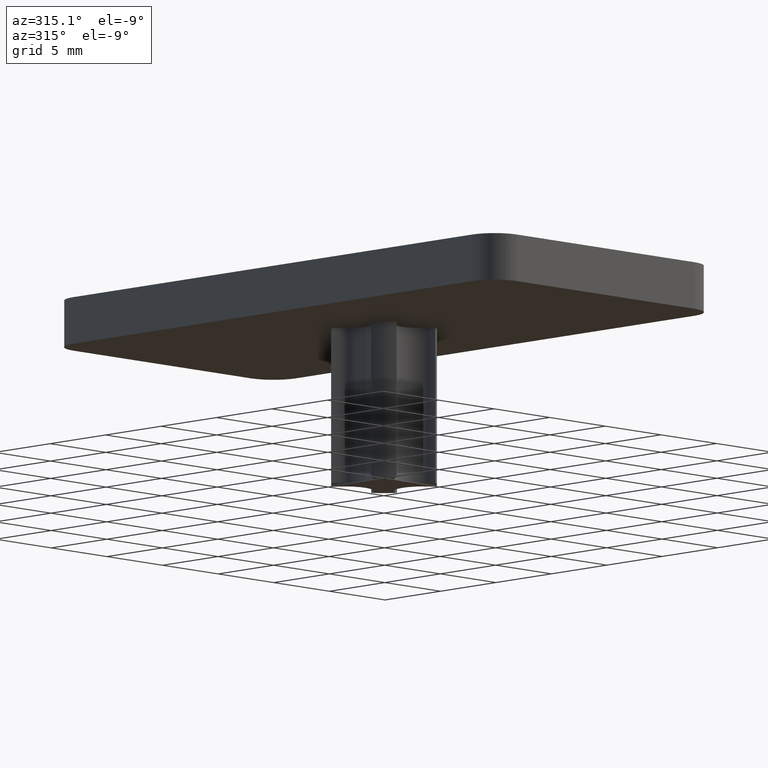
[diagram: clean part render]
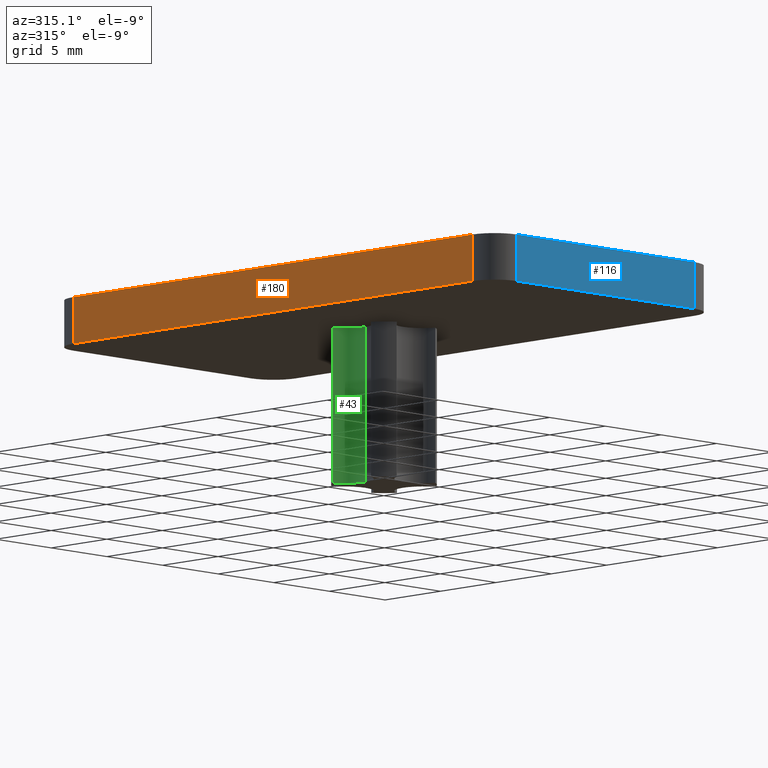
[diagram: same view with three faces highlighted in distinct colors, each labeled with its STEP entity id]
A machine part, auxiliary view with three faces highlighted in distinct colors.
Their STEP definitions:

[orange] entity #180 — the highlighted planar face has unit normal (1, 0, 0).
#122=CARTESIAN_POINT('',(-3.673940E-016,-17.999999999999996,3.0));
#123=VERTEX_POINT('',#122);
#131=CARTESIAN_POINT('',(0.0,-17.999999999999996,0.0));
#132=VERTEX_POINT('',#131);
#133=CARTESIAN_POINT('',(0.0,-17.999999999999996,0.0));
#134=DIRECTION('',(0.0,0.0,1.0));
#135=VECTOR('',#134,3.0);
#136=LINE('',#133,#135);
#137=EDGE_CURVE('',#132,#123,#136,.T.);
#150=CARTESIAN_POINT('',(-3.857637E-016,-19.799999999999997,3.150000000000000));
#151=DIRECTION('',(1.0,0.0,0.0));
#152=DIRECTION('',(0.0,0.0,-1.0));
#153=AXIS2_PLACEMENT_3D('',#150,#151,#152);
#154=PLANE('',#153);
#155=CARTESIAN_POINT('',(-3.673940E-016,17.999999999999993,3.0));
#156=VERTEX_POINT('',#155);
#157=CARTESIAN_POINT('',(-3.673940E-016,-17.999999999999996,3.0));
#158=DIRECTION('',(0.0,1.0,0.0));
#159=VECTOR('',#158,35.999999999999993);
#160=LINE('',#157,#159);
#161=EDGE_CURVE('',#123,#156,#160,.T.);
#162=ORIENTED_EDGE('',*,*,#161,.T.);
#163=CARTESIAN_POINT('',(0.0,17.999999999999993,0.0));
#164=VERTEX_POINT('',#163);
#165=CARTESIAN_POINT('',(0.0,17.999999999999993,0.0));
#166=DIRECTION('',(0.0,0.0,1.0));
#167=VECTOR('',#166,3.0);
#168=LINE('',#165,#167);
#169=EDGE_CURVE('',#164,#156,#168,.T.);
#170=ORIENTED_EDGE('',*,*,#169,.F.);
#171=CARTESIAN_POINT('',(0.0,-17.999999999999996,0.0));
#172=DIRECTION('',(0.0,1.0,0.0));
#173=VECTOR('',#172,35.999999999999993);
#174=LINE('',#171,#173);
#175=EDGE_CURVE('',#132,#164,#174,.T.);
#176=ORIENTED_EDGE('',*,*,#175,.F.);
#177=ORIENTED_EDGE('',*,*,#137,.T.);
#178=EDGE_LOOP('',(#162,#170,#176,#177));
#179=FACE_OUTER_BOUND('',#178,.T.);
#180=ADVANCED_FACE('',(#179),#154,.F.);

[blue] entity #116 — the highlighted planar face has unit normal (0, 1, 0).
#51=CARTESIAN_POINT('',(17.999999999999986,-19.999999999999996,3.000000000000002));
#52=VERTEX_POINT('',#51);
#60=CARTESIAN_POINT('',(17.999999999999986,-19.999999999999996,2.204364E-015));
#61=VERTEX_POINT('',#60);
#62=CARTESIAN_POINT('',(17.999999999999986,-19.999999999999996,2.204364E-015));
#63=DIRECTION('',(0.0,0.0,1.0));
#64=VECTOR('',#63,3.0);
#65=LINE('',#62,#64);
#66=EDGE_CURVE('',#61,#52,#65,.T.);
#86=CARTESIAN_POINT('',(18.799999999999983,-19.999999999999996,3.150000000000002));
#87=DIRECTION('',(0.0,1.0,0.0));
#88=DIRECTION('',(0.0,0.0,-1.0));
#89=AXIS2_PLACEMENT_3D('',#86,#87,#88);
#90=PLANE('',#89);
#91=CARTESIAN_POINT('',(2.000000000000007,-19.999999999999996,3.000000000000000));
#92=VERTEX_POINT('',#91);
#93=CARTESIAN_POINT('',(17.999999999999986,-19.999999999999996,3.000000000000002));
#94=DIRECTION('',(-1.0,0.0,0.0));
#95=VECTOR('',#94,15.999999999999979);
#96=LINE('',#93,#95);
#97=EDGE_CURVE('',#52,#92,#96,.T.);
#98=ORIENTED_EDGE('',*,*,#97,.T.);
#99=CARTESIAN_POINT('',(2.000000000000007,-19.999999999999996,2.449294E-016));
#100=VERTEX_POINT('',#99);
#101=CARTESIAN_POINT('',(2.000000000000007,-19.999999999999996,2.449294E-016));
#102=DIRECTION('',(0.0,0.0,1.0));
#103=VECTOR('',#102,3.0);
#104=LINE('',#101,#103);
#105=EDGE_CURVE('',#100,#92,#104,.T.);
#106=ORIENTED_EDGE('',*,*,#105,.F.);
#107=CARTESIAN_POINT('',(17.999999999999986,-19.999999999999996,2.204364E-015));
#108=DIRECTION('',(-1.0,0.0,0.0));
#109=VECTOR('',#108,15.999999999999979);
#110=LINE('',#107,#109);
#111=EDGE_CURVE('',#61,#100,#110,.T.);
#112=ORIENTED_EDGE('',*,*,#111,.F.);
#113=ORIENTED_EDGE('',*,*,#66,.T.);
#114=EDGE_LOOP('',(#98,#106,#112,#113));
#115=FACE_OUTER_BOUND('',#114,.T.);
#116=ADVANCED_FACE('',(#115),#90,.F.);

[green] entity #43 — the highlighted cylindrical surface (edge-blend (fillet) strip) has radius 1.85 mm, axis along (-0, 0, 1).
#2=CARTESIAN_POINT('',(6.462427046943312,3.552714E-015,-10.000000010000001));
#3=DIRECTION('',(-1.224647E-016,0.0,1.0));
#4=DIRECTION('',(-0.820773029339414,-0.571254439202884,-1.005157E-016));
#5=AXIS2_PLACEMENT_3D('',#2,#3,#4);
#6=CYLINDRICAL_SURFACE('',#5,1.850000000000001);
#7=CARTESIAN_POINT('',(8.312427046943311,3.552714E-015,-9.999999999999998));
#8=VERTEX_POINT('',#7);
#9=CARTESIAN_POINT('',(7.105000000000005,1.734819875376116,-10.0));
#10=VERTEX_POINT('',#9);
#11=CARTESIAN_POINT('',(6.462427046943309,3.552714E-015,-10.0));
#12=DIRECTION('',(-1.224647E-016,0.0,1.0));
#13=DIRECTION('',(0.0,1.0,0.0));
#14=AXIS2_PLACEMENT_3D('',#11,#12,#13);
#15=CIRCLE('',#14,1.850000000000001);
#16=EDGE_CURVE('',#8,#10,#15,.T.);
#17=ORIENTED_EDGE('',*,*,#16,.F.);
#18=CARTESIAN_POINT('',(8.312427046943309,3.552714E-015,1.017979E-015));
#19=VERTEX_POINT('',#18);
#20=CARTESIAN_POINT('',(8.312427046943311,3.552714E-015,-9.999999999999998));
#21=DIRECTION('',(0.0,0.0,1.0));
#22=VECTOR('',#21,10.0);
#23=LINE('',#20,#22);
#24=EDGE_CURVE('',#8,#19,#23,.T.);
#25=ORIENTED_EDGE('',*,*,#24,.T.);
#26=CARTESIAN_POINT('',(7.105000000000004,1.734819875376116,8.701116E-016));
#27=VERTEX_POINT('',#26);
#28=CARTESIAN_POINT('',(6.462427046943308,3.552714E-015,7.914191E-016));
#29=DIRECTION('',(-1.224647E-016,0.0,1.0));
#30=DIRECTION('',(0.0,1.0,0.0));
#31=AXIS2_PLACEMENT_3D('',#28,#29,#30);
#32=CIRCLE('',#31,1.850000000000001);
#33=EDGE_CURVE('',#19,#27,#32,.T.);
#34=ORIENTED_EDGE('',*,*,#33,.T.);
#35=CARTESIAN_POINT('',(7.105000000000005,1.734819875376116,-10.0));
#36=DIRECTION('',(0.0,0.0,1.0));
#37=VECTOR('',#36,10.0);
#38=LINE('',#35,#37);
#39=EDGE_CURVE('',#10,#27,#38,.T.);
#40=ORIENTED_EDGE('',*,*,#39,.F.);
#41=EDGE_LOOP('',(#17,#25,#34,#40));
#42=FACE_OUTER_BOUND('',#41,.T.);
#43=ADVANCED_FACE('',(#42),#6,.F.);